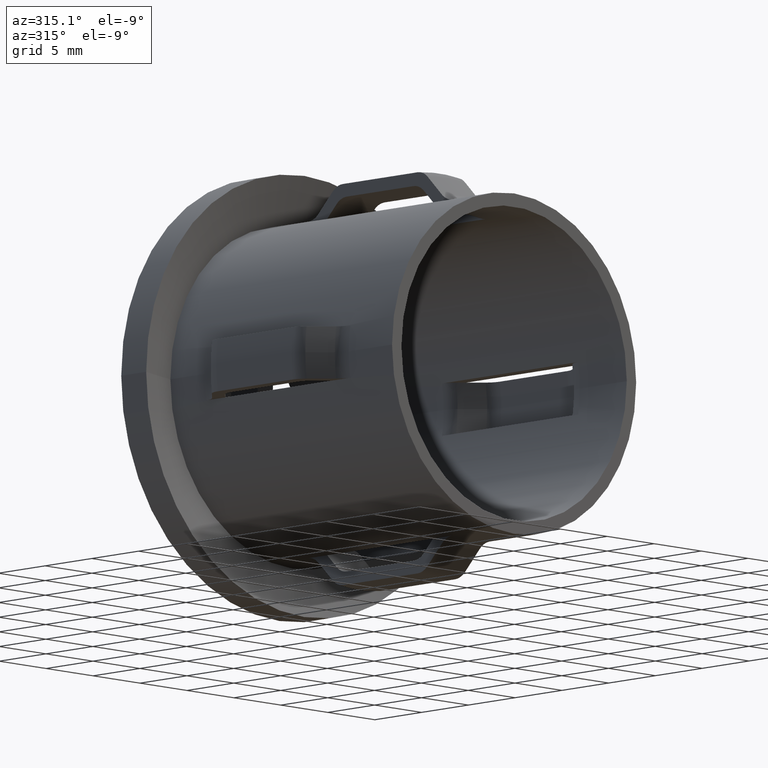
[diagram: clean part render]
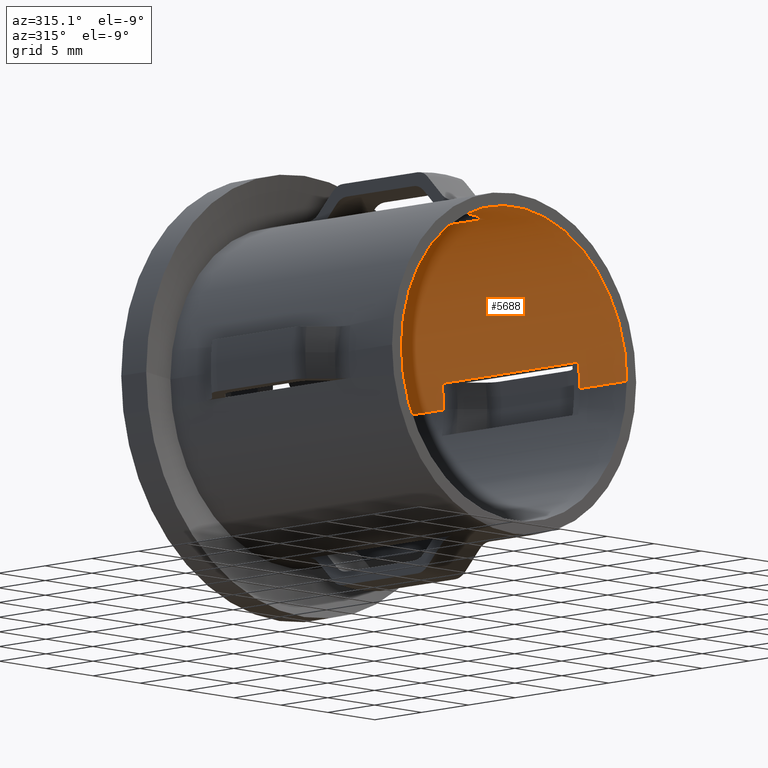
[diagram: same view with one face highlighted and labeled with its STEP entity id]
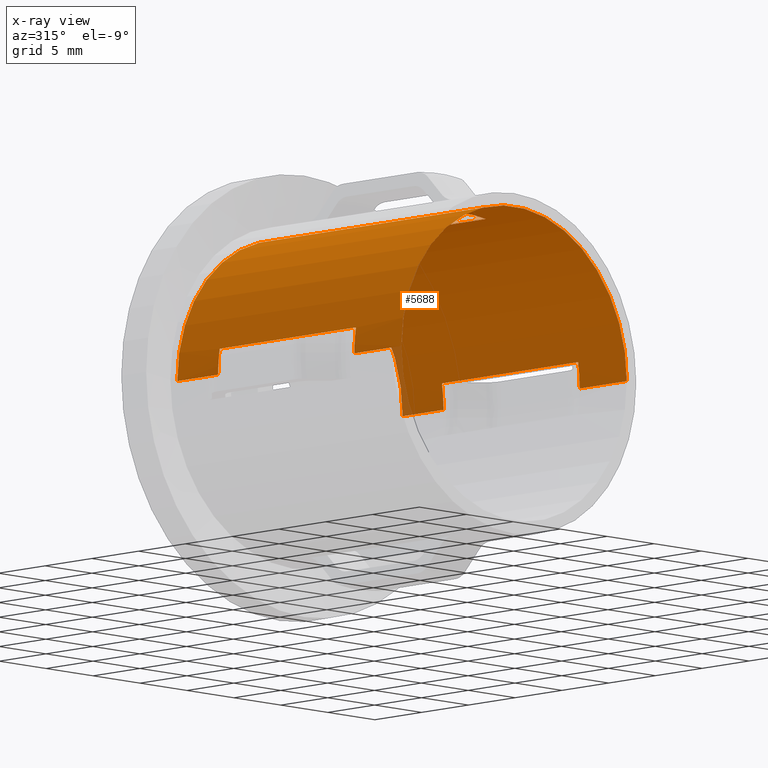
[diagram: x-ray of the same camera — body ghosted, the highlighted face saturated]
A machine part, auxiliary view. The second image highlights one B-rep face of the part: STEP entity #5688.
The next image is the same camera in x-ray: the body ghosted, the highlighted face saturated — about 1% of this face is hidden behind the body in this view.
In plain terms, the highlighted cylindrical surface (partial cylindrical patch) has radius 12 mm, axis along (-0, -1, -0).
Its self-contained STEP definition (entity closure, byte-faithful):
#50 = VECTOR ( 'NONE', #11205, 1000.000000000000000 ) ;
#246 = DIRECTION ( 'NONE',  ( 1.000000000000000000, -2.891205793294674300E-015, 0.0000000000000000000 ) ) ;
#473 = DIRECTION ( 'NONE',  ( -2.904862207577519400E-015, -1.000000000000000000, -0.0000000000000000000 ) ) ;
#639 = VECTOR ( 'NONE', #3518, 1000.000000000000000 ) ;
#642 = CARTESIAN_POINT ( 'NONE',  ( -7.407398629322663700E-014, 3.469446951953614200E-014, 0.0000000000000000000 ) ) ;
#680 = AXIS2_PLACEMENT_3D ( 'NONE', #6238, #12854, #788 ) ;
#788 = DIRECTION ( 'NONE',  ( 1.000000000000000000, -2.891205793294678200E-015, 0.0000000000000000000 ) ) ;
#938 = CARTESIAN_POINT ( 'NONE',  ( 0.0000000000000000000, 25.50000000000000000, 0.0000000000000000000 ) ) ;
#1029 = CARTESIAN_POINT ( 'NONE',  ( -1.999999999999998700, 19.58578643762692600, 11.83215956619931900 ) ) ;
#1507 = ORIENTED_EDGE ( 'NONE', *, *, #4180, .F. ) ;
#1648 = EDGE_CURVE ( 'NONE', #16956, #15252, #7430, .T. ) ;
#2010 = DIRECTION ( 'NONE',  ( 1.000000000000000000, -2.904862207577519400E-015, 0.0000000000000000000 ) ) ;
#2029 = CARTESIAN_POINT ( 'NONE',  ( 12.00000000000001100, 25.49999999999996400, 0.0000000000000000000 ) ) ;
#2328 = CARTESIAN_POINT ( 'NONE',  ( -11.83215956619938300, 20.00000000000000000, 1.999999999999996700 ) ) ;
#2362 = AXIS2_PLACEMENT_3D ( 'NONE', #14599, #7912, #9279 ) ;
#2408 = ORIENTED_EDGE ( 'NONE', *, *, #11257, .T. ) ;
#2413 = AXIS2_PLACEMENT_3D ( 'NONE', #938, #10347, #13243 ) ;
#2446 = ORIENTED_EDGE ( 'NONE', *, *, #6501, .T. ) ;
#2616 = CIRCLE ( 'NONE', #680, 12.00000000000000200 ) ;
#2725 = VERTEX_POINT ( 'NONE', #12375 ) ;
#2878 = AXIS2_PLACEMENT_3D ( 'NONE', #11010, #2966, #246 ) ;
#2966 = DIRECTION ( 'NONE',  ( -2.904862207577519400E-015, -1.000000000000000000, -0.0000000000000000000 ) ) ;
#3215 = FACE_OUTER_BOUND ( 'NONE', #10589, .T. ) ;
#3478 = DIRECTION ( 'NONE',  ( -2.449293598294745400E-017, -1.000000000000000000, 0.0000000000000000000 ) ) ;
#3518 = DIRECTION ( 'NONE',  ( -2.904862207577519400E-015, -1.000000000000000000, -0.0000000000000000000 ) ) ;
#3661 = EDGE_CURVE ( 'NONE', #4615, #16432, #6429, .T. ) ;
#3891 = LINE ( 'NONE', #2328, #15121 ) ;
#4101 = LINE ( 'NONE', #7777, #15534 ) ;
#4180 = EDGE_CURVE ( 'NONE', #14972, #4633, #2616, .T. ) ;
#4428 = CARTESIAN_POINT ( 'NONE',  ( -1.999999999999998700, 20.00000000000000000, 11.83215956619931900 ) ) ;
#4558 = ORIENTED_EDGE ( 'NONE', *, *, #7068, .T. ) ;
#4615 = VERTEX_POINT ( 'NONE', #7782 ) ;
#4633 = VERTEX_POINT ( 'NONE', #6298 ) ;
#4635 = CARTESIAN_POINT ( 'NONE',  ( 12.00000000000000000, -1.638769713943073800E-016, 0.0000000000000000000 ) ) ;
#5334 = CARTESIAN_POINT ( 'NONE',  ( -12.00000000000014900, 6.955281601046659600E-014, 1.469576158976837400E-015 ) ) ;
#5341 = CARTESIAN_POINT ( 'NONE',  ( 12.00000000000000000, 5.028932188134525000, 0.0000000000000000000 ) ) ;
#5402 = EDGE_LOOP ( 'NONE', ( #15168, #2408, #8320, #12846 ) ) ;
#5543 = CIRCLE ( 'NONE', #14893, 12.00000000000001800 ) ;
#5588 = CARTESIAN_POINT ( 'NONE',  ( -11.83215956619938300, 5.028932188134573900, 1.999999999999996700 ) ) ;
#5635 = CARTESIAN_POINT ( 'NONE',  ( -2.000000000000052400, 5.028932188134565900, 11.83215956619929400 ) ) ;
#5688 = ADVANCED_FACE ( 'NONE', ( #3215, #17224 ), #13802, .F. ) ;
#6142 = CARTESIAN_POINT ( 'NONE',  ( -1.717997546487990000E-014, 19.58578643762694300, 0.0000000000000000000 ) ) ;
#6144 = CIRCLE ( 'NONE', #2878, 12.00000000000001800 ) ;
#6238 = CARTESIAN_POINT ( 'NONE',  ( -4.475750527003953700E-015, 23.95922105519198900, 0.0000000000000000000 ) ) ;
#6298 = CARTESIAN_POINT ( 'NONE',  ( -11.99999999999987900, 23.95922105519202500, 0.0000000000000000000 ) ) ;
#6429 = LINE ( 'NONE', #6815, #10029 ) ;
#6501 = EDGE_CURVE ( 'NONE', #14435, #14415, #5543, .T. ) ;
#6529 = CARTESIAN_POINT ( 'NONE',  ( -12.00000000000003600, 19.58578643762697900, 1.469576158976826500E-015 ) ) ;
#6538 = VERTEX_POINT ( 'NONE', #5341 ) ;
#6694 = AXIS2_PLACEMENT_3D ( 'NONE', #15691, #8863, #12894 ) ;
#6815 = CARTESIAN_POINT ( 'NONE',  ( 2.000000000000000900, 20.00000000000000000, 11.83215956619929600 ) ) ;
#6959 = CARTESIAN_POINT ( 'NONE',  ( -1.717997546487990000E-014, 19.58578643762694300, 0.0000000000000000000 ) ) ;
#7020 = LINE ( 'NONE', #4428, #13387 ) ;
#7068 = EDGE_CURVE ( 'NONE', #14972, #2725, #11654, .T. ) ;
#7094 = ORIENTED_EDGE ( 'NONE', *, *, #9719, .T. ) ;
#7112 = AXIS2_PLACEMENT_3D ( 'NONE', #6959, #15248, #7127 ) ;
#7127 = DIRECTION ( 'NONE',  ( 1.000000000000000000, -2.891205793294674300E-015, 0.0000000000000000000 ) ) ;
#7252 = VERTEX_POINT ( 'NONE', #10201 ) ;
#7430 = CIRCLE ( 'NONE', #6694, 12.00000000000005900 ) ;
#7628 = EDGE_CURVE ( 'NONE', #2725, #7252, #6144, .T. ) ;
#7745 = EDGE_CURVE ( 'NONE', #13004, #15362, #15177, .T. ) ;
#7777 = CARTESIAN_POINT ( 'NONE',  ( -12.00000000000001100, 25.50000000000003200, 1.469576158976825100E-015 ) ) ;
#7782 = CARTESIAN_POINT ( 'NONE',  ( 2.000000000000000900, 19.58578643762692200, 11.83215956619929600 ) ) ;
#7807 = ORIENTED_EDGE ( 'NONE', *, *, #12879, .F. ) ;
#7821 = CARTESIAN_POINT ( 'NONE',  ( -11.83215956619926800, 19.58578643762697900, 1.999999999999993100 ) ) ;
#7912 = DIRECTION ( 'NONE',  ( -2.904862207577519400E-015, -1.000000000000000000, -0.0000000000000000000 ) ) ;
#7926 = EDGE_CURVE ( 'NONE', #16432, #12614, #8175, .T. ) ;
#8175 = CIRCLE ( 'NONE', #8978, 12.00000000000005900 ) ;
#8320 = ORIENTED_EDGE ( 'NONE', *, *, #7926, .F. ) ;
#8532 = DIRECTION ( 'NONE',  ( -2.904862207577519400E-015, -1.000000000000000000, -0.0000000000000000000 ) ) ;
#8799 = DIRECTION ( 'NONE',  ( 1.000000000000000000, -2.891205793294664400E-015, 0.0000000000000000000 ) ) ;
#8863 = DIRECTION ( 'NONE',  ( -2.904862207577519400E-015, -1.000000000000000000, -0.0000000000000000000 ) ) ;
#8880 = LINE ( 'NONE', #11608, #639 ) ;
#8923 = DIRECTION ( 'NONE',  ( 1.000000000000000000, -2.891205793294674300E-015, 0.0000000000000000000 ) ) ;
#8978 = AXIS2_PLACEMENT_3D ( 'NONE', #16932, #12951, #8799 ) ;
#9279 = DIRECTION ( 'NONE',  ( 1.000000000000000000, -2.891205793294664400E-015, 0.0000000000000000000 ) ) ;
#9613 = CARTESIAN_POINT ( 'NONE',  ( 11.83215956619923600, 20.00000000000000000, 1.999999999999996700 ) ) ;
#9719 = EDGE_CURVE ( 'NONE', #7252, #17442, #13822, .T. ) ;
#10029 = VECTOR ( 'NONE', #10939, 1000.000000000000000 ) ;
#10201 = CARTESIAN_POINT ( 'NONE',  ( 11.83215956619923400, 19.58578643762690800, 2.000000000000002200 ) ) ;
#10309 = EDGE_CURVE ( 'NONE', #4633, #14415, #11037, .T. ) ;
#10347 = DIRECTION ( 'NONE',  ( -2.904862207577519400E-015, -1.000000000000000000, -0.0000000000000000000 ) ) ;
#10455 = DIRECTION ( 'NONE',  ( -2.904862207577519400E-015, -1.000000000000000000, -0.0000000000000000000 ) ) ;
#10589 = EDGE_LOOP ( 'NONE', ( #16234, #1507, #4558, #15886, #7094, #7807, #12549, #12241, #11159, #13331, #16866, #2446 ) ) ;
#10807 = VECTOR ( 'NONE', #8532, 1000.000000000000000 ) ;
#10890 = CIRCLE ( 'NONE', #2362, 12.00000000000005900 ) ;
#10939 = DIRECTION ( 'NONE',  ( -2.449293598294745400E-017, -1.000000000000000000, 0.0000000000000000000 ) ) ;
#11010 = CARTESIAN_POINT ( 'NONE',  ( -1.717997546487990000E-014, 19.58578643762694300, 0.0000000000000000000 ) ) ;
#11037 = LINE ( 'NONE', #11155, #50 ) ;
#11081 = CARTESIAN_POINT ( 'NONE',  ( 12.00000000000000000, 23.95922105519195400, -1.469576158976808000E-015 ) ) ;
#11155 = CARTESIAN_POINT ( 'NONE',  ( -12.00000000000001100, 25.50000000000003200, 1.469576158976825100E-015 ) ) ;
#11159 = ORIENTED_EDGE ( 'NONE', *, *, #14734, .F. ) ;
#11205 = DIRECTION ( 'NONE',  ( -2.904862207577519400E-015, -1.000000000000000000, -0.0000000000000000000 ) ) ;
#11257 = EDGE_CURVE ( 'NONE', #14289, #12614, #7020, .T. ) ;
#11608 = CARTESIAN_POINT ( 'NONE',  ( 12.00000000000001100, 25.49999999999996400, 0.0000000000000000000 ) ) ;
#11614 = EDGE_CURVE ( 'NONE', #6538, #13004, #8880, .T. ) ;
#11654 = LINE ( 'NONE', #2029, #10807 ) ;
#11802 = DIRECTION ( 'NONE',  ( -2.449293598294745400E-017, -1.000000000000000000, 0.0000000000000000000 ) ) ;
#12241 = ORIENTED_EDGE ( 'NONE', *, *, #7745, .T. ) ;
#12272 = DIRECTION ( 'NONE',  ( -2.449293598294745400E-017, -1.000000000000000000, 0.0000000000000000000 ) ) ;
#12375 = CARTESIAN_POINT ( 'NONE',  ( 12.00000000000000000, 19.58578643762690800, 0.0000000000000000000 ) ) ;
#12549 = ORIENTED_EDGE ( 'NONE', *, *, #11614, .T. ) ;
#12614 = VERTEX_POINT ( 'NONE', #5635 ) ;
#12846 = ORIENTED_EDGE ( 'NONE', *, *, #3661, .F. ) ;
#12854 = DIRECTION ( 'NONE',  ( -2.904862207577519400E-015, -1.000000000000000000, -0.0000000000000000000 ) ) ;
#12879 = EDGE_CURVE ( 'NONE', #6538, #17442, #10890, .T. ) ;
#12894 = DIRECTION ( 'NONE',  ( 1.000000000000000000, -2.891205793294664400E-015, 0.0000000000000000000 ) ) ;
#12951 = DIRECTION ( 'NONE',  ( -2.904862207577519400E-015, -1.000000000000000000, -0.0000000000000000000 ) ) ;
#13004 = VERTEX_POINT ( 'NONE', #4635 ) ;
#13076 = DIRECTION ( 'NONE',  ( -2.904862207577519400E-015, -1.000000000000000000, -0.0000000000000000000 ) ) ;
#13243 = DIRECTION ( 'NONE',  ( 1.000000000000000000, -2.891205793294675900E-015, 0.0000000000000000000 ) ) ;
#13331 = ORIENTED_EDGE ( 'NONE', *, *, #1648, .F. ) ;
#13387 = VECTOR ( 'NONE', #3478, 1000.000000000000000 ) ;
#13802 = CYLINDRICAL_SURFACE ( 'NONE', #2413, 12.00000000000001100 ) ;
#13822 = LINE ( 'NONE', #9613, #16573 ) ;
#13999 = CIRCLE ( 'NONE', #7112, 12.00000000000001800 ) ;
#14266 = EDGE_CURVE ( 'NONE', #14435, #16956, #3891, .T. ) ;
#14289 = VERTEX_POINT ( 'NONE', #1029 ) ;
#14415 = VERTEX_POINT ( 'NONE', #6529 ) ;
#14435 = VERTEX_POINT ( 'NONE', #7821 ) ;
#14599 = CARTESIAN_POINT ( 'NONE',  ( -5.946563123544453200E-014, 5.028932188134559700, 0.0000000000000000000 ) ) ;
#14734 = EDGE_CURVE ( 'NONE', #15252, #15362, #4101, .T. ) ;
#14893 = AXIS2_PLACEMENT_3D ( 'NONE', #6142, #13076, #8923 ) ;
#14972 = VERTEX_POINT ( 'NONE', #11081 ) ;
#15121 = VECTOR ( 'NONE', #11802, 1000.000000000000000 ) ;
#15168 = ORIENTED_EDGE ( 'NONE', *, *, #16762, .T. ) ;
#15177 = CIRCLE ( 'NONE', #15343, 12.00000000000007500 ) ;
#15248 = DIRECTION ( 'NONE',  ( -2.904862207577519400E-015, -1.000000000000000000, -0.0000000000000000000 ) ) ;
#15252 = VERTEX_POINT ( 'NONE', #15817 ) ;
#15343 = AXIS2_PLACEMENT_3D ( 'NONE', #642, #473, #2010 ) ;
#15362 = VERTEX_POINT ( 'NONE', #5334 ) ;
#15534 = VECTOR ( 'NONE', #10455, 1000.000000000000000 ) ;
#15691 = CARTESIAN_POINT ( 'NONE',  ( -5.946563123544453200E-014, 5.028932188134559700, 0.0000000000000000000 ) ) ;
#15817 = CARTESIAN_POINT ( 'NONE',  ( -12.00000000000011700, 5.028932188134594300, 1.469576158976833200E-015 ) ) ;
#15886 = ORIENTED_EDGE ( 'NONE', *, *, #7628, .T. ) ;
#16234 = ORIENTED_EDGE ( 'NONE', *, *, #10309, .F. ) ;
#16345 = CARTESIAN_POINT ( 'NONE',  ( 11.83215956619923400, 5.028932188134525000, 2.000000000000002200 ) ) ;
#16432 = VERTEX_POINT ( 'NONE', #17056 ) ;
#16573 = VECTOR ( 'NONE', #12272, 1000.000000000000000 ) ;
#16762 = EDGE_CURVE ( 'NONE', #4615, #14289, #13999, .T. ) ;
#16866 = ORIENTED_EDGE ( 'NONE', *, *, #14266, .F. ) ;
#16932 = CARTESIAN_POINT ( 'NONE',  ( -5.946563123544453200E-014, 5.028932188134559700, 0.0000000000000000000 ) ) ;
#16956 = VERTEX_POINT ( 'NONE', #5588 ) ;
#17056 = CARTESIAN_POINT ( 'NONE',  ( 1.999999999999963100, 5.028932188134553400, 11.83215956619928900 ) ) ;
#17224 = FACE_BOUND ( 'NONE', #5402, .T. ) ;
#17442 = VERTEX_POINT ( 'NONE', #16345 ) ;